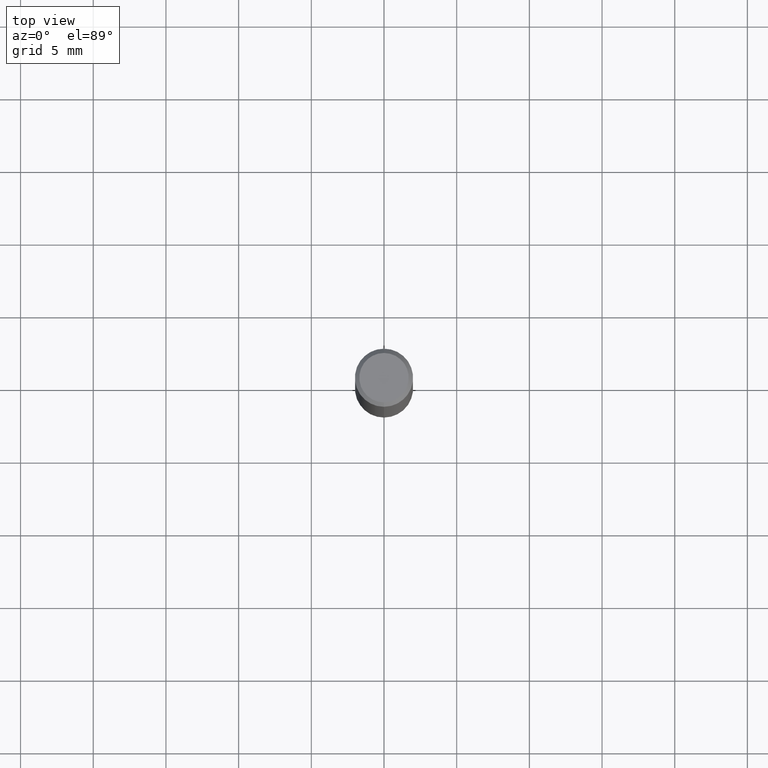
[diagram: clean part render]
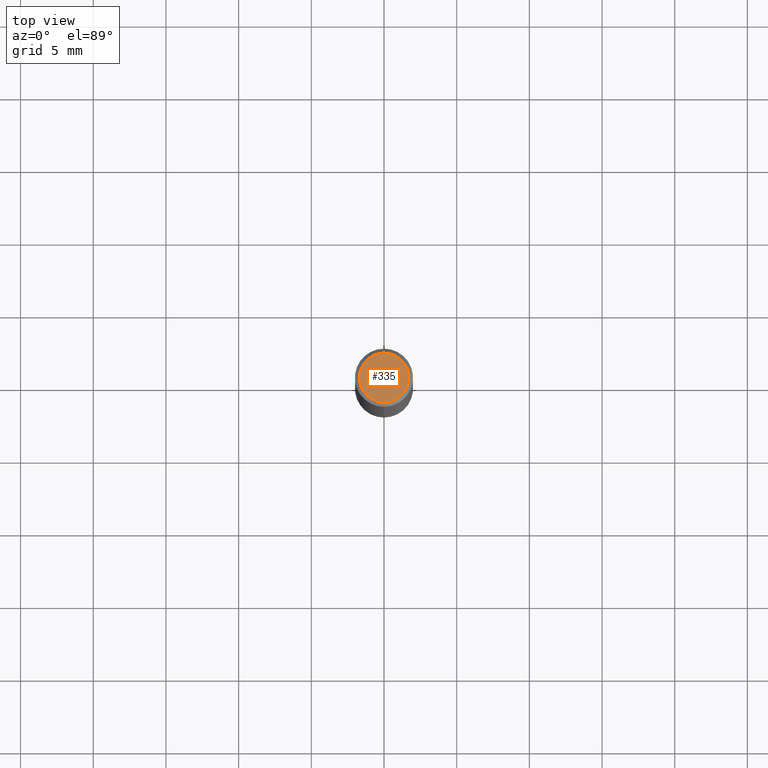
[diagram: same view with one face highlighted and labeled with its STEP entity id]
A machine part, top view. The second image highlights one B-rep face of the part: STEP entity #335.
In plain terms, the highlighted planar face has unit normal (-0, 0, 1).
Its self-contained STEP definition (entity closure, byte-faithful):
#221=EDGE_CURVE('',#347,#261,#469,.T.);
#245=EDGE_CURVE('',#261,#347,#495,.T.);
#261=VERTEX_POINT('',#514);
#335=ADVANCED_FACE('',(#595),#596,.T.);
#347=VERTEX_POINT('',#610);
#469=CIRCLE('',#750,1.7);
#495=CIRCLE('',#786,1.7);
#514=CARTESIAN_POINT('',(0.0,1.7,0.00999999999999801));
#595=FACE_OUTER_BOUND('',#912,.T.);
#596=PLANE('',#913);
#610=CARTESIAN_POINT('',(2.08183080149804E-016,-1.7,0.00999999999999801));
#750=AXIS2_PLACEMENT_3D('',#1079,#1080,#1081);
#786=AXIS2_PLACEMENT_3D('',#1102,#1103,#1104);
#912=EDGE_LOOP('',(#1228,#1229));
#913=AXIS2_PLACEMENT_3D('',#1230,#1231,#1232);
#1079=CARTESIAN_POINT('',(0.0,0.0,0.00999999999999801));
#1080=DIRECTION('',(0.0,0.0,-1.0));
#1081=DIRECTION('',(0.0,1.0,0.0));
#1102=CARTESIAN_POINT('',(0.0,0.0,0.00999999999999801));
#1103=DIRECTION('',(0.0,0.0,-1.0));
#1104=DIRECTION('',(0.0,1.0,0.0));
#1228=ORIENTED_EDGE('',*,*,#245,.F.);
#1229=ORIENTED_EDGE('',*,*,#221,.F.);
#1230=CARTESIAN_POINT('',(0.0,0.85,0.00999999999999801));
#1231=DIRECTION('',(-0.0,0.0,1.0));
#1232=DIRECTION('',(0.0,-1.0,0.0));